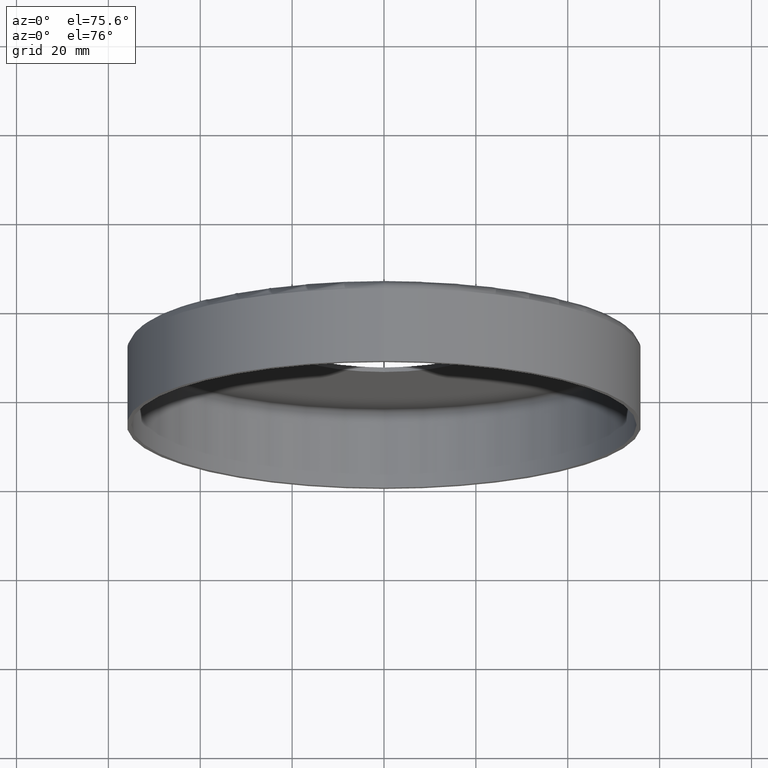
[diagram: clean part render]
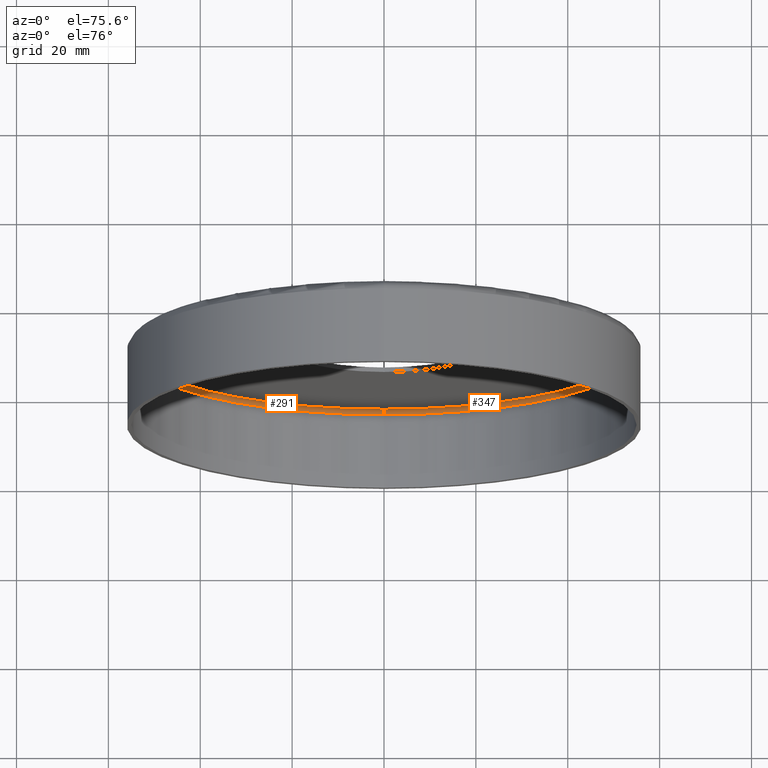
[diagram: same view with one multi-face feature highlighted, each face labeled with its STEP entity id]
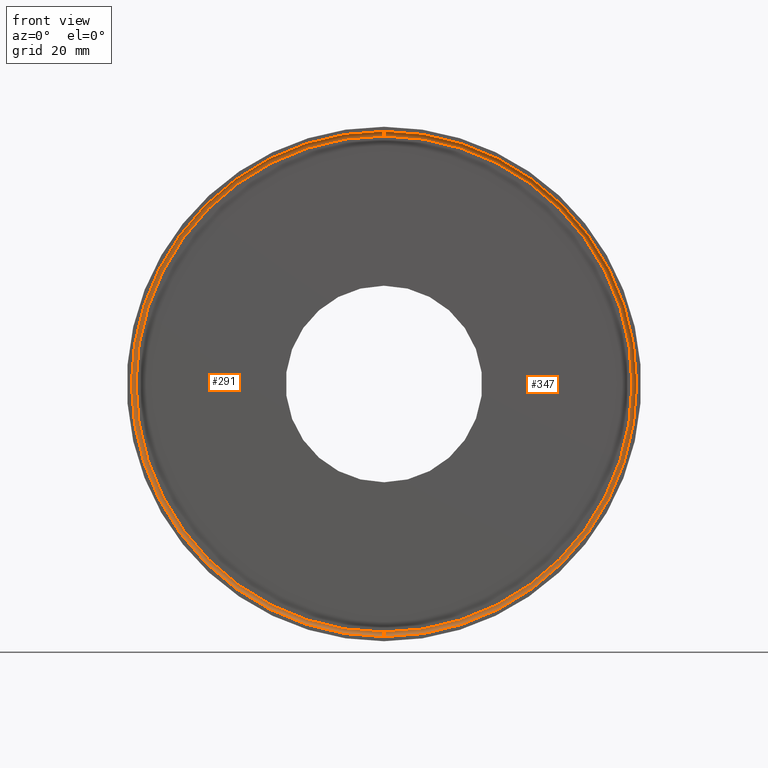
[diagram: same view with one multi-face feature highlighted, each face labeled with its STEP entity id]
A machine part, auxiliary view. The highlighted faces form ONE feature: a constant-radius fillet chain: 2 tangent blend faces with common blend radius 1 mm. The faces share edges in the B-rep.
A second angle (front view) of the same feature is appended — it is thin or edge-on in the first view.
Their STEP definitions:
[1] entity #347 (Torus):
#6 = DIRECTION ( 'NONE',  ( 0.0000000000000000000, 0.0000000000000000000, 1.000000000000000000 ) ) ;
#11 = AXIS2_PLACEMENT_3D ( 'NONE', #114, #297, #328 ) ;
#13 = VERTEX_POINT ( 'NONE', #335 ) ;
#23 = CARTESIAN_POINT ( 'NONE',  ( 0.0000000000000000000, 17.39999999999999900, 54.00000000000000700 ) ) ;
#27 = VERTEX_POINT ( 'NONE', #367 ) ;
#33 = AXIS2_PLACEMENT_3D ( 'NONE', #288, #290, #355 ) ;
#34 = EDGE_CURVE ( 'NONE', #379, #76, #163, .T. ) ;
#48 = AXIS2_PLACEMENT_3D ( 'NONE', #68, #101, #6 ) ;
#68 = CARTESIAN_POINT ( 'NONE',  ( 0.0000000000000000000, 17.39999999999999900, 0.0000000000000000000 ) ) ;
#76 = VERTEX_POINT ( 'NONE', #132 ) ;
#80 = DIRECTION ( 'NONE',  ( 1.000000000000000000, -0.0000000000000000000, 1.224646799147353200E-016 ) ) ;
#101 = DIRECTION ( 'NONE',  ( 0.0000000000000000000, 1.000000000000000000, 0.0000000000000000000 ) ) ;
#114 = CARTESIAN_POINT ( 'NONE',  ( 0.0000000000000000000, 16.39999999999999900, 0.0000000000000000000 ) ) ;
#132 = CARTESIAN_POINT ( 'NONE',  ( 6.674325055353075800E-015, 17.39999999999999900, -54.00000000000000700 ) ) ;
#138 = CIRCLE ( 'NONE', #303, 1.000000000000000900 ) ;
#147 = FACE_OUTER_BOUND ( 'NONE', #277, .T. ) ;
#163 = CIRCLE ( 'NONE', #48, 54.00000000000000700 ) ;
#164 = CIRCLE ( 'NONE', #208, 1.000000000000000900 ) ;
#175 = EDGE_CURVE ( 'NONE', #27, #76, #138, .T. ) ;
#193 = CARTESIAN_POINT ( 'NONE',  ( 6.613092715395708300E-015, 16.39999999999999900, -54.00000000000000700 ) ) ;
#200 = TOROIDAL_SURFACE ( 'NONE', #11, 54.00000000000000700, 1.000000000000000000 ) ;
#208 = AXIS2_PLACEMENT_3D ( 'NONE', #358, #292, #393 ) ;
#216 = EDGE_CURVE ( 'NONE', #27, #13, #235, .T. ) ;
#235 = CIRCLE ( 'NONE', #33, 55.00000000000000700 ) ;
#265 = ORIENTED_EDGE ( 'NONE', *, *, #375, .T. ) ;
#274 = ORIENTED_EDGE ( 'NONE', *, *, #175, .F. ) ;
#277 = EDGE_LOOP ( 'NONE', ( #274, #352, #265, #337 ) ) ;
#288 = CARTESIAN_POINT ( 'NONE',  ( 0.0000000000000000000, 16.39999999999999900, 0.0000000000000000000 ) ) ;
#290 = DIRECTION ( 'NONE',  ( -0.0000000000000000000, -1.000000000000000000, -0.0000000000000000000 ) ) ;
#292 = DIRECTION ( 'NONE',  ( -1.000000000000000000, 0.0000000000000000000, 0.0000000000000000000 ) ) ;
#297 = DIRECTION ( 'NONE',  ( 0.0000000000000000000, 1.000000000000000000, 0.0000000000000000000 ) ) ;
#303 = AXIS2_PLACEMENT_3D ( 'NONE', #193, #80, #386 ) ;
#328 = DIRECTION ( 'NONE',  ( 0.0000000000000000000, 0.0000000000000000000, 1.000000000000000000 ) ) ;
#335 = CARTESIAN_POINT ( 'NONE',  ( 6.735557395310444200E-015, 16.39999999999999900, 55.00000000000000700 ) ) ;
#337 = ORIENTED_EDGE ( 'NONE', *, *, #34, .T. ) ;
#347 = ADVANCED_FACE ( 'NONE', ( #147 ), #200, .F. ) ;
#352 = ORIENTED_EDGE ( 'NONE', *, *, #216, .T. ) ;
#355 = DIRECTION ( 'NONE',  ( 0.0000000000000000000, 0.0000000000000000000, -1.000000000000000000 ) ) ;
#358 = CARTESIAN_POINT ( 'NONE',  ( 0.0000000000000000000, 16.39999999999999900, 54.00000000000000700 ) ) ;
#367 = CARTESIAN_POINT ( 'NONE',  ( 0.0000000000000000000, 16.39999999999999900, -55.00000000000000700 ) ) ;
#375 = EDGE_CURVE ( 'NONE', #13, #379, #164, .T. ) ;
#379 = VERTEX_POINT ( 'NONE', #23 ) ;
#386 = DIRECTION ( 'NONE',  ( 1.224646799147349500E-016, 0.0000000000000000000, -1.000000000000000000 ) ) ;
#393 = DIRECTION ( 'NONE',  ( 0.0000000000000000000, 0.0000000000000000000, 1.000000000000000000 ) ) ;
[2] entity #291 (Torus):
#13 = VERTEX_POINT ( 'NONE', #335 ) ;
#23 = CARTESIAN_POINT ( 'NONE',  ( 0.0000000000000000000, 17.39999999999999900, 54.00000000000000700 ) ) ;
#25 = TOROIDAL_SURFACE ( 'NONE', #140, 54.00000000000000700, 1.000000000000000000 ) ;
#27 = VERTEX_POINT ( 'NONE', #367 ) ;
#65 = ORIENTED_EDGE ( 'NONE', *, *, #234, .T. ) ;
#71 = EDGE_LOOP ( 'NONE', ( #381, #92, #65, #211 ) ) ;
#76 = VERTEX_POINT ( 'NONE', #132 ) ;
#80 = DIRECTION ( 'NONE',  ( 1.000000000000000000, -0.0000000000000000000, 1.224646799147353200E-016 ) ) ;
#92 = ORIENTED_EDGE ( 'NONE', *, *, #175, .T. ) ;
#132 = CARTESIAN_POINT ( 'NONE',  ( 6.674325055353075800E-015, 17.39999999999999900, -54.00000000000000700 ) ) ;
#138 = CIRCLE ( 'NONE', #303, 1.000000000000000900 ) ;
#140 = AXIS2_PLACEMENT_3D ( 'NONE', #144, #230, #231 ) ;
#141 = CARTESIAN_POINT ( 'NONE',  ( 0.0000000000000000000, 17.39999999999999900, 0.0000000000000000000 ) ) ;
#143 = DIRECTION ( 'NONE',  ( 0.0000000000000000000, 0.0000000000000000000, -1.000000000000000000 ) ) ;
#144 = CARTESIAN_POINT ( 'NONE',  ( 0.0000000000000000000, 16.39999999999999900, 0.0000000000000000000 ) ) ;
#145 = CARTESIAN_POINT ( 'NONE',  ( 0.0000000000000000000, 16.39999999999999900, 0.0000000000000000000 ) ) ;
#162 = DIRECTION ( 'NONE',  ( 0.0000000000000000000, 1.000000000000000000, 0.0000000000000000000 ) ) ;
#164 = CIRCLE ( 'NONE', #208, 1.000000000000000900 ) ;
#175 = EDGE_CURVE ( 'NONE', #27, #76, #138, .T. ) ;
#193 = CARTESIAN_POINT ( 'NONE',  ( 6.613092715395708300E-015, 16.39999999999999900, -54.00000000000000700 ) ) ;
#208 = AXIS2_PLACEMENT_3D ( 'NONE', #358, #292, #393 ) ;
#211 = ORIENTED_EDGE ( 'NONE', *, *, #375, .F. ) ;
#230 = DIRECTION ( 'NONE',  ( 0.0000000000000000000, 1.000000000000000000, 0.0000000000000000000 ) ) ;
#231 = DIRECTION ( 'NONE',  ( 0.0000000000000000000, 0.0000000000000000000, 1.000000000000000000 ) ) ;
#234 = EDGE_CURVE ( 'NONE', #76, #379, #278, .T. ) ;
#252 = AXIS2_PLACEMENT_3D ( 'NONE', #141, #162, #383 ) ;
#271 = FACE_OUTER_BOUND ( 'NONE', #71, .T. ) ;
#278 = CIRCLE ( 'NONE', #252, 54.00000000000000700 ) ;
#291 = ADVANCED_FACE ( 'NONE', ( #271 ), #25, .F. ) ;
#292 = DIRECTION ( 'NONE',  ( -1.000000000000000000, 0.0000000000000000000, 0.0000000000000000000 ) ) ;
#303 = AXIS2_PLACEMENT_3D ( 'NONE', #193, #80, #386 ) ;
#335 = CARTESIAN_POINT ( 'NONE',  ( 6.735557395310444200E-015, 16.39999999999999900, 55.00000000000000700 ) ) ;
#345 = AXIS2_PLACEMENT_3D ( 'NONE', #145, #363, #143 ) ;
#358 = CARTESIAN_POINT ( 'NONE',  ( 0.0000000000000000000, 16.39999999999999900, 54.00000000000000700 ) ) ;
#363 = DIRECTION ( 'NONE',  ( -0.0000000000000000000, -1.000000000000000000, -0.0000000000000000000 ) ) ;
#364 = EDGE_CURVE ( 'NONE', #13, #27, #380, .T. ) ;
#367 = CARTESIAN_POINT ( 'NONE',  ( 0.0000000000000000000, 16.39999999999999900, -55.00000000000000700 ) ) ;
#375 = EDGE_CURVE ( 'NONE', #13, #379, #164, .T. ) ;
#379 = VERTEX_POINT ( 'NONE', #23 ) ;
#380 = CIRCLE ( 'NONE', #345, 55.00000000000000700 ) ;
#381 = ORIENTED_EDGE ( 'NONE', *, *, #364, .T. ) ;
#383 = DIRECTION ( 'NONE',  ( 0.0000000000000000000, 0.0000000000000000000, 1.000000000000000000 ) ) ;
#386 = DIRECTION ( 'NONE',  ( 1.224646799147349500E-016, 0.0000000000000000000, -1.000000000000000000 ) ) ;
#393 = DIRECTION ( 'NONE',  ( 0.0000000000000000000, 0.0000000000000000000, 1.000000000000000000 ) ) ;